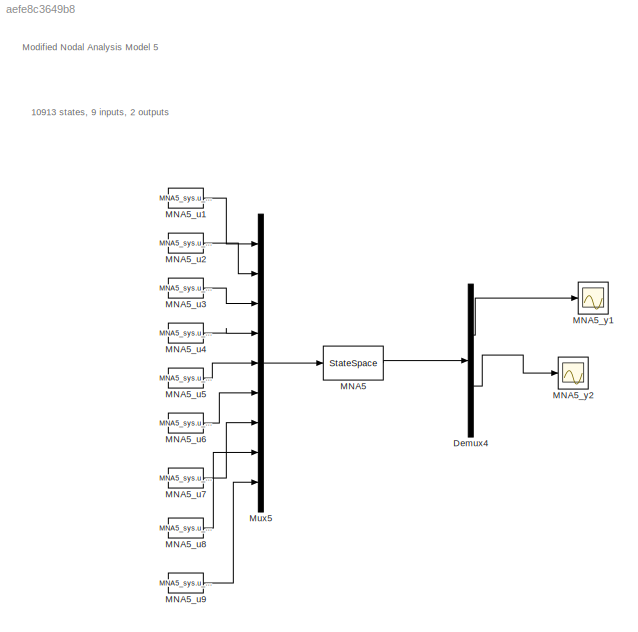
MODEL slx_aefe8c3649b8
KIND model
BLOCK [Demux] Demux4
  DisplayOption = bar
  Outputs = 2
  Ports = [1, 2]
BLOCK [StateSpace] MNA5
  A = MNA5_sys.sys.a
  B = MNA5_sys.sys.b
  C = MNA5_sys.sys.c
  D = MNA5_sys.sys.d
  Ports = [1, 1]
  X0 = MNA5_sys.x0_lb
BLOCK [Constant] MNA5_u1
  Value = MNA5_sys.u_ub(1)
BLOCK [Constant] MNA5_u2
  Value = MNA5_sys.u_ub(2)
BLOCK [Constant] MNA5_u3
  Value = MNA5_sys.u_ub(3)
BLOCK [Constant] MNA5_u4
  Value = MNA5_sys.u_ub(4)
BLOCK [Constant] MNA5_u5
  Value = MNA5_sys.u_ub(5)
BLOCK [Constant] MNA5_u6
  Value = MNA5_sys.u_ub(6)
BLOCK [Constant] MNA5_u7
  Value = MNA5_sys.u_ub(7)
BLOCK [Constant] MNA5_u8
  Value = MNA5_sys.u_ub(8)
BLOCK [Constant] MNA5_u9
  Value = MNA5_sys.u_ub(9)
BLOCK [Scope] MNA5_y1
  Floating = off
  NumInputPorts = 1
  Ports = [1]
  SaveName = ScopeData22
  ShowLegends = off
BLOCK [Scope] MNA5_y2
  Floating = off
  NumInputPorts = 1
  Ports = [1]
  SaveName = ScopeData23
  ShowLegends = off
BLOCK [Mux] Mux5
  DisplayOption = bar
  Inputs = 9
  Ports = [9, 1]
ANNOTATION (root): 10913 states, 9 inputs, 2 outputs
ANNOTATION (root): Modified Nodal Analysis Model 5
LINE Demux4:1 -> MNA5_y1:1
LINE Demux4:2 -> MNA5_y2:1
LINE MNA5:1 -> Demux4:1
LINE MNA5_u1:1 -> Mux5:1
LINE MNA5_u2:1 -> Mux5:2
LINE MNA5_u3:1 -> Mux5:3
LINE MNA5_u4:1 -> Mux5:4
LINE MNA5_u5:1 -> Mux5:5
LINE MNA5_u6:1 -> Mux5:6
LINE MNA5_u7:1 -> Mux5:7
LINE MNA5_u8:1 -> Mux5:8
LINE MNA5_u9:1 -> Mux5:9
LINE Mux5:1 -> MNA5:1
